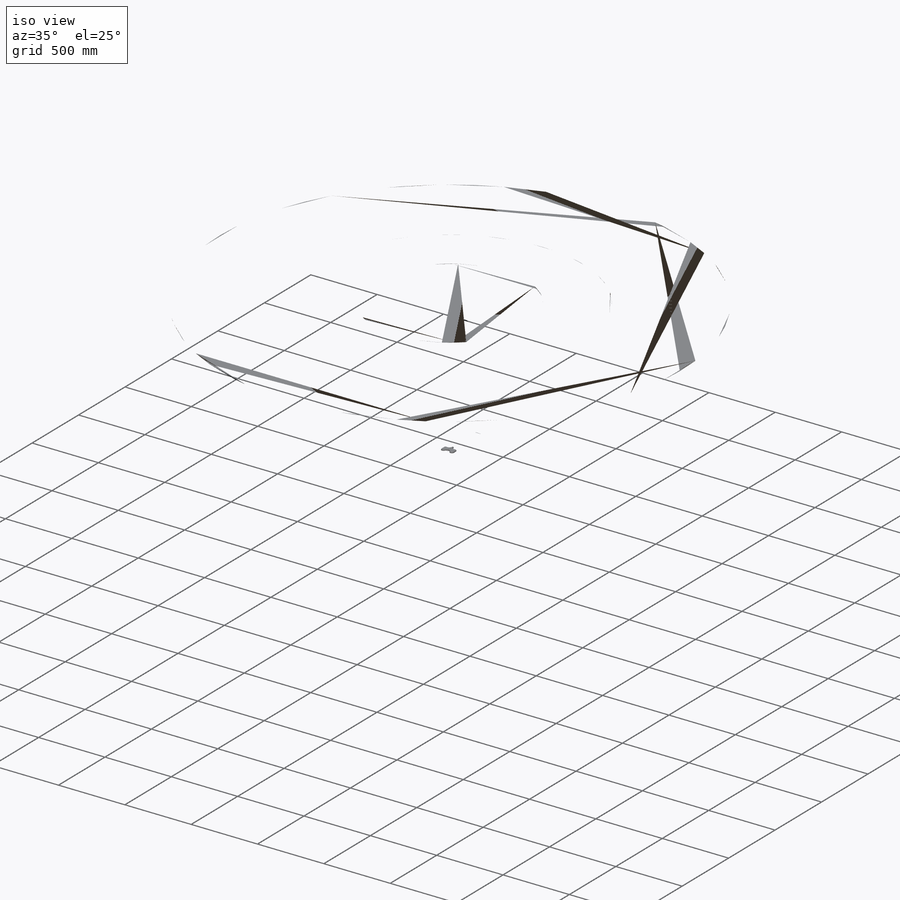
[diagram: iso view]
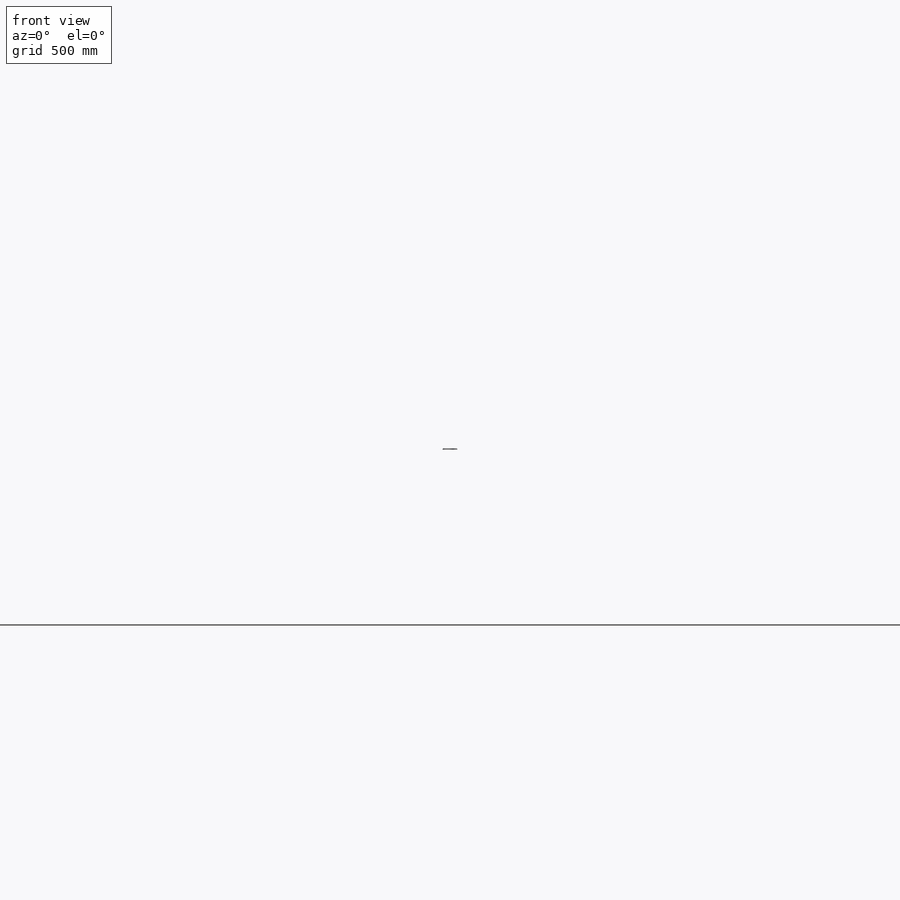
[diagram: front view]
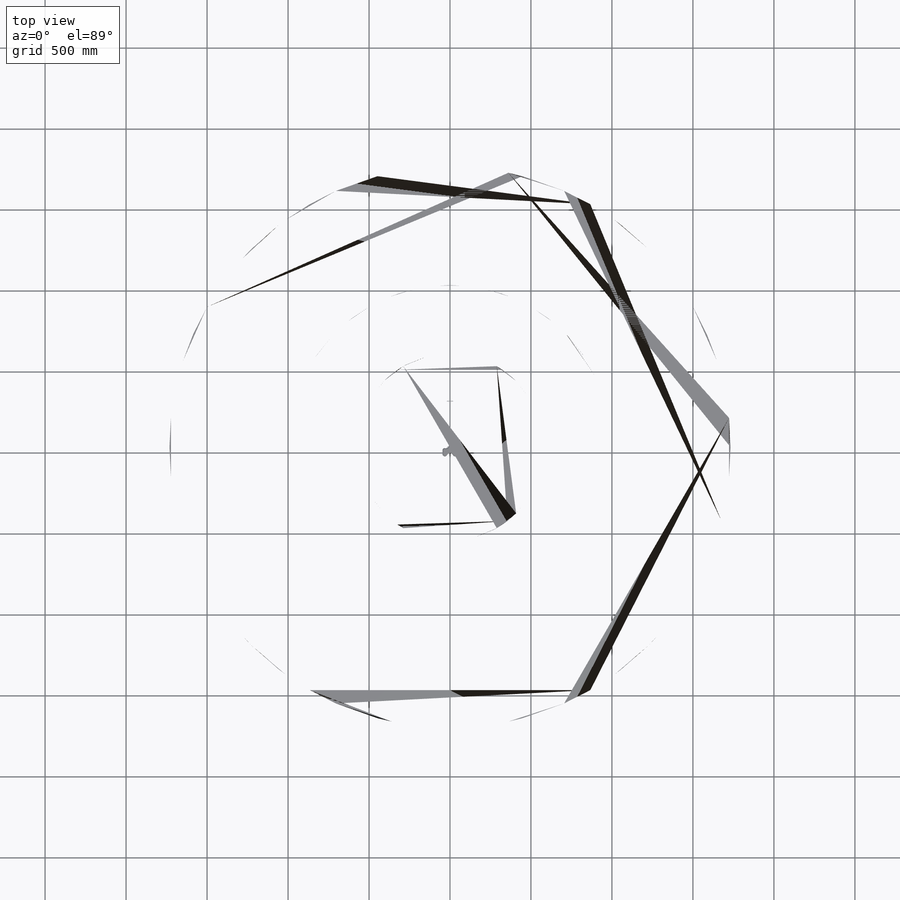
[diagram: top view]
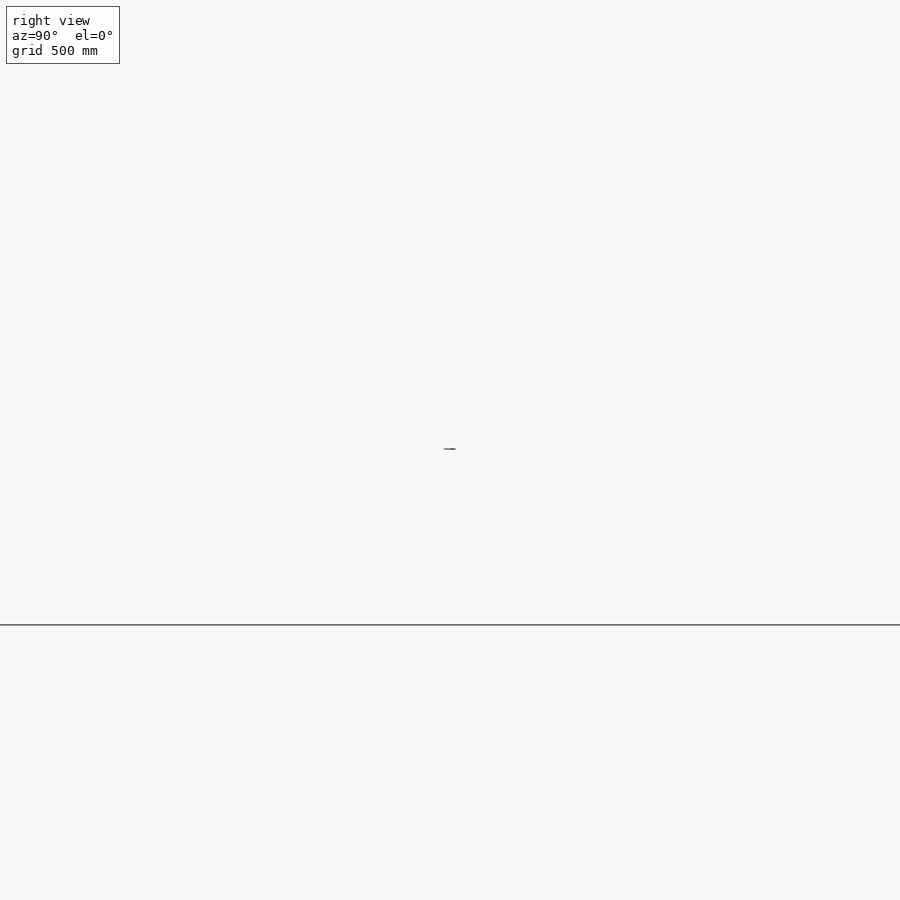
[diagram: right view]
SOLIDWORKS PART (.sldprt)
format: sldprt  version: not decoded by parser v0  size: 1,020,928 bytes
history: native  units: mm
features: sketch x4, chamfer x3, extrude x2, cut_extrude x2, material x1, boolean_combine x1 + 2 further entries (+18 scaffold rows collapsed; 4 parser-record rows omitted)
feature tree (37):
  scaffold x18  (default folders/planes/origin — collapsed)
  material  "ABS"
  "d3_base_o"
  parser-record x4  (decoder bookkeeping rows leaked as tree rows — omitted from the tree; the rows remain in map.json)
  sketch  "Sketch1"  dims[D1=1.5mm]
  extrude  "Urethane Body"  Depth=4mm
  sketch  "Sketch2"
  cut_extrude  "Yale Logo"  Depth=1mm
  chamfer  "Contouring"  Distance=3mm Angle=45deg
  sketch  "Sketch3"  dims[D1=0.0mm]
  extrude  "Mold Body"  Depth=1mm
  boolean_combine  "Subtract"
  sketch  "Sketch4"  dims[D1=0.0mm D2=0.5mm]
  cut_extrude  "Outer Lip"  Depth=2mm
  chamfer  "Print Chamfer 1"  Distance=0.5mm Angle=45deg
  chamfer  "Print Chamfer 2"  Distance=3mm Angle=45deg
  "Coordinate System1"
decode coverage: 10 of 12 modeling features carry decoded parameters; 2 rows unclassified (native names shown)
note: suppression state not decoded; provenance and decode notes live in map.json
